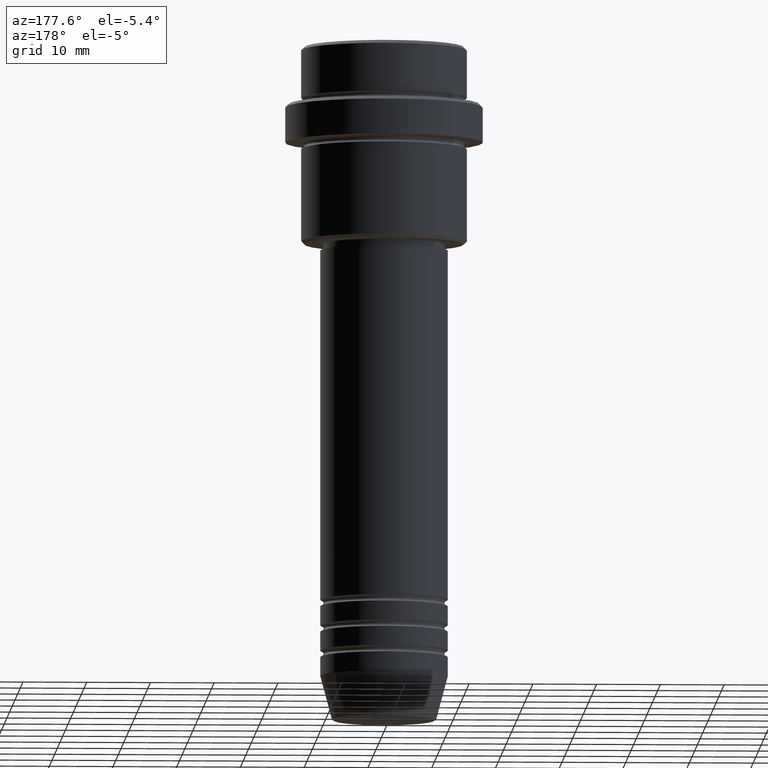
[diagram: clean part render]
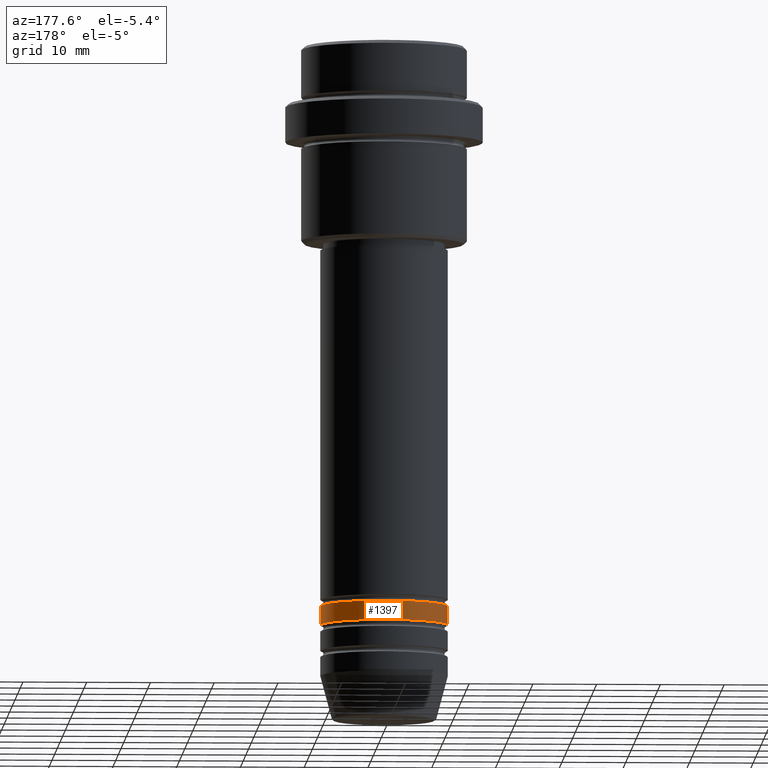
[diagram: same view with one face highlighted and labeled with its STEP entity id]
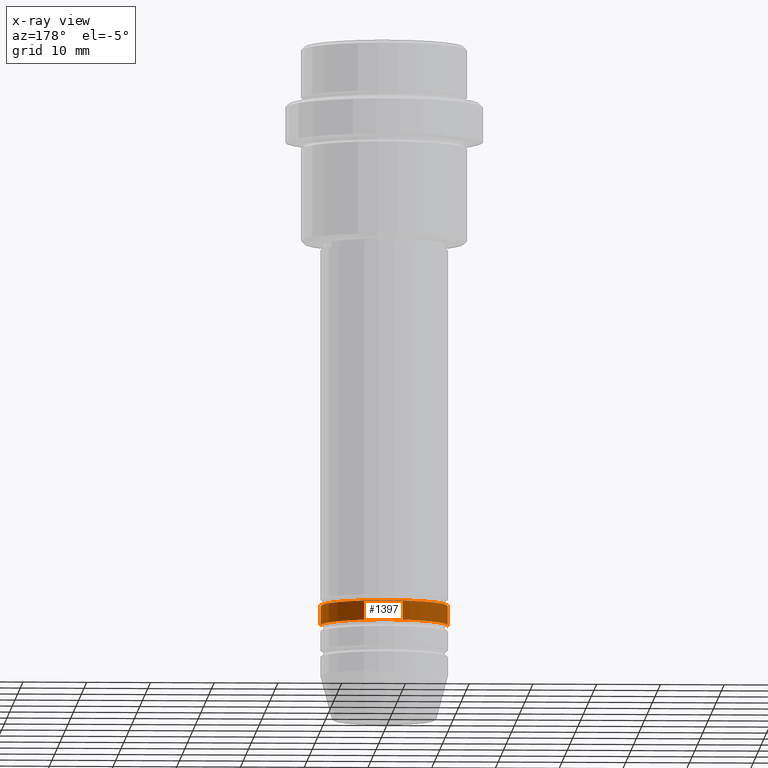
[diagram: x-ray of the same camera — body ghosted, the highlighted face saturated]
A machine part, auxiliary view. The second image highlights one B-rep face of the part: STEP entity #1397.
The next image is the same camera in x-ray: the body ghosted, the highlighted face saturated — about 0% of this face is hidden behind the body in this view.
In plain terms, the highlighted cylindrical surface (partial cylindrical patch) has radius 10 mm, axis along (-0, -0, 1).
Its self-contained STEP definition (entity closure, byte-faithful):
#13 = DIRECTION ( 'NONE',  ( 1.000000000000000000, 0.000000000000000000, 0.000000000000000000 ) ) ;
#72 = EDGE_LOOP ( 'NONE', ( #1376, #744, #930, #892 ) ) ;
#90 = DIRECTION ( 'NONE',  ( -0.000000000000000000, -0.000000000000000000, 1.000000000000000000 ) ) ;
#174 = EDGE_CURVE ( 'NONE', #1174, #482, #390, .T. ) ;
#205 = CARTESIAN_POINT ( 'NONE',  ( 0.000000000000000000, 0.000000000000000000, -87.99999999999988631 ) ) ;
#214 = LINE ( 'NONE', #794, #938 ) ;
#267 = CARTESIAN_POINT ( 'NONE',  ( -10.00000000000000000, 1.224646799147353256E-15, -87.99999999999988631 ) ) ;
#303 = VERTEX_POINT ( 'NONE', #1255 ) ;
#319 = EDGE_CURVE ( 'NONE', #654, #482, #726, .T. ) ;
#390 = LINE ( 'NONE', #945, #867 ) ;
#447 = AXIS2_PLACEMENT_3D ( 'NONE', #526, #819, #733 ) ;
#482 = VERTEX_POINT ( 'NONE', #267 ) ;
#526 = CARTESIAN_POINT ( 'NONE',  ( 0.000000000000000000, 0.000000000000000000, 0.000000000000000000 ) ) ;
#548 = EDGE_CURVE ( 'NONE', #303, #654, #214, .T. ) ;
#630 = FACE_OUTER_BOUND ( 'NONE', #72, .T. ) ;
#654 = VERTEX_POINT ( 'NONE', #950 ) ;
#669 = DIRECTION ( 'NONE',  ( -0.000000000000000000, -0.000000000000000000, 1.000000000000000000 ) ) ;
#726 = CIRCLE ( 'NONE', #1364, 10.00000000000000000 ) ;
#733 = DIRECTION ( 'NONE',  ( 1.000000000000000000, 0.000000000000000000, 0.000000000000000000 ) ) ;
#744 = ORIENTED_EDGE ( 'NONE', *, *, #174, .T. ) ;
#751 = AXIS2_PLACEMENT_3D ( 'NONE', #1207, #988, #13 ) ;
#794 = CARTESIAN_POINT ( 'NONE',  ( 10.00000000000000000, 0.000000000000000000, 0.000000000000000000 ) ) ;
#819 = DIRECTION ( 'NONE',  ( -0.000000000000000000, -0.000000000000000000, 1.000000000000000000 ) ) ;
#825 = CYLINDRICAL_SURFACE ( 'NONE', #447, 10.00000000000000000 ) ;
#867 = VECTOR ( 'NONE', #1181, 1000.000000000000000 ) ;
#892 = ORIENTED_EDGE ( 'NONE', *, *, #548, .F. ) ;
#930 = ORIENTED_EDGE ( 'NONE', *, *, #319, .F. ) ;
#938 = VECTOR ( 'NONE', #669, 1000.000000000000000 ) ;
#945 = CARTESIAN_POINT ( 'NONE',  ( -10.00000000000000000, 1.224646799147353256E-15, 0.000000000000000000 ) ) ;
#950 = CARTESIAN_POINT ( 'NONE',  ( 10.00000000000000000, 0.000000000000000000, -87.99999999999988631 ) ) ;
#984 = EDGE_CURVE ( 'NONE', #303, #1174, #1341, .T. ) ;
#988 = DIRECTION ( 'NONE',  ( -0.000000000000000000, -0.000000000000000000, 1.000000000000000000 ) ) ;
#1018 = CARTESIAN_POINT ( 'NONE',  ( -10.00000000000000000, 1.224646799147353256E-15, -90.99999999999988631 ) ) ;
#1174 = VERTEX_POINT ( 'NONE', #1018 ) ;
#1181 = DIRECTION ( 'NONE',  ( -0.000000000000000000, -0.000000000000000000, 1.000000000000000000 ) ) ;
#1207 = CARTESIAN_POINT ( 'NONE',  ( 0.000000000000000000, 0.000000000000000000, -90.99999999999988631 ) ) ;
#1255 = CARTESIAN_POINT ( 'NONE',  ( 10.00000000000000000, 0.000000000000000000, -90.99999999999988631 ) ) ;
#1284 = DIRECTION ( 'NONE',  ( 1.000000000000000000, 0.000000000000000000, 0.000000000000000000 ) ) ;
#1341 = CIRCLE ( 'NONE', #751, 10.00000000000000000 ) ;
#1364 = AXIS2_PLACEMENT_3D ( 'NONE', #205, #90, #1284 ) ;
#1376 = ORIENTED_EDGE ( 'NONE', *, *, #984, .T. ) ;
#1397 = ADVANCED_FACE ( 'NONE', ( #630 ), #825, .T. ) ;